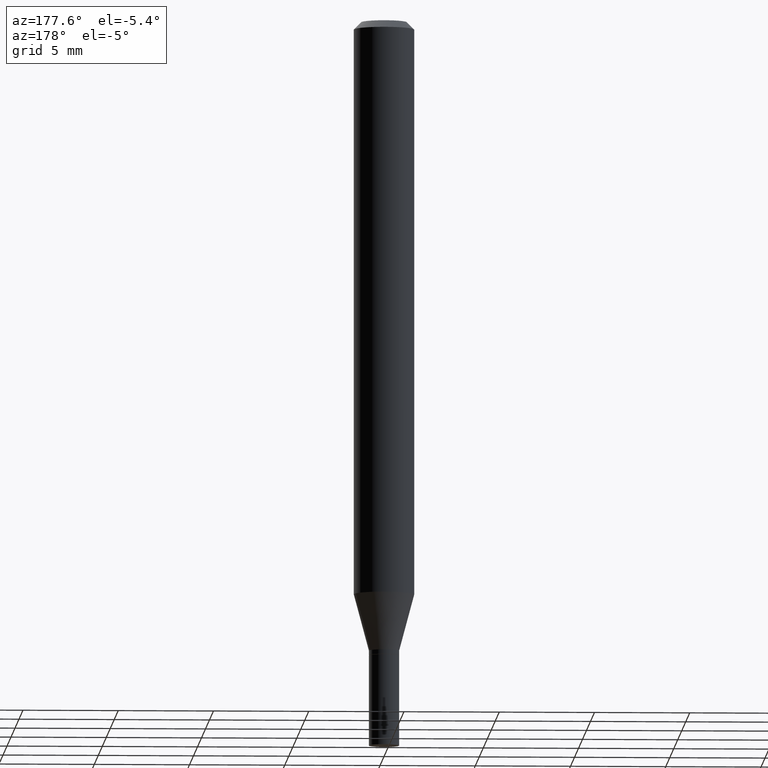
[diagram: clean part render]
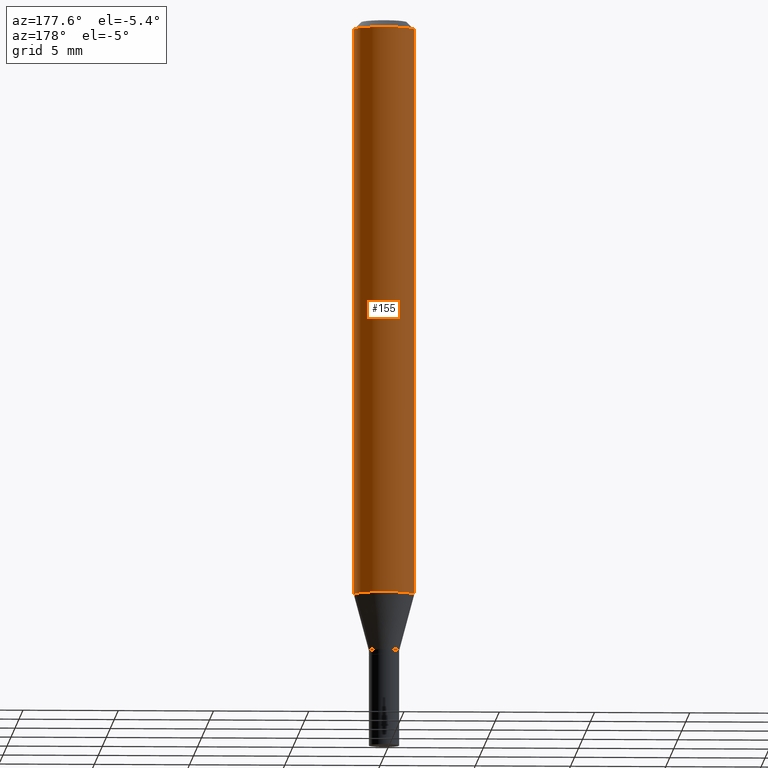
[diagram: same view with one face highlighted and labeled with its STEP entity id]
A machine part, auxiliary view. The second image highlights one B-rep face of the part: STEP entity #155.
In plain terms, the highlighted cylindrical surface (edge-blend (fillet) strip) has radius 1.5875 mm, axis along (-0, 0, 1).
Its self-contained STEP definition (entity closure, byte-faithful):
#4 = AXIS2_PLACEMENT_3D ( 'NONE', #119, #405, #188 ) ;
#18 = CARTESIAN_POINT ( 'NONE',  ( 2.901239172177741338E-29, -4.142200629817580672E-15, -1.186373412263472593 ) ) ;
#29 = DIRECTION ( 'NONE',  ( -2.445468806185136597E-29, 3.491481338843145583E-15, 1.000000000000000000 ) ) ;
#39 = ORIENTED_EDGE ( 'NONE', *, *, #361, .T. ) ;
#59 = CARTESIAN_POINT ( 'NONE',  ( 3.668203209277705088E-31, -5.237222008264718399E-17, -0.01499999999999999944 ) ) ;
#103 = CARTESIAN_POINT ( 'NONE',  ( -0.06250000000000000000, 4.440892098500626162E-16, -3.074334431409316114E-30 ) ) ;
#104 = AXIS2_PLACEMENT_3D ( 'NONE', #59, #29, #309 ) ;
#119 = CARTESIAN_POINT ( 'NONE',  ( 0.000000000000000000, 0.000000000000000000, 0.000000000000000000 ) ) ;
#127 = CARTESIAN_POINT ( 'NONE',  ( 0.06250000000000000000, -4.364351673553916694E-16, 3.047610484872459871E-30 ) ) ;
#131 = CARTESIAN_POINT ( 'NONE',  ( 0.06250000000000000000, -4.578635797172973130E-15, -1.186373412263472593 ) ) ;
#135 = CIRCLE ( 'NONE', #104, 0.06250000000000000000 ) ;
#141 = EDGE_CURVE ( 'NONE', #389, #434, #444, .T. ) ;
#146 = CIRCLE ( 'NONE', #288, 0.06250000000000000000 ) ;
#150 = CYLINDRICAL_SURFACE ( 'NONE', #4, 0.06250000000000000000 ) ;
#155 = ADVANCED_FACE ( 'NONE', ( #230 ), #150, .T. ) ;
#177 = LINE ( 'NONE', #103, #316 ) ;
#188 = DIRECTION ( 'NONE',  ( 1.000000000000000000, -6.982962677686266711E-15, 4.876176775795935793E-29 ) ) ;
#193 = ORIENTED_EDGE ( 'NONE', *, *, #141, .F. ) ;
#206 = EDGE_CURVE ( 'NONE', #436, #430, #177, .T. ) ;
#207 = ORIENTED_EDGE ( 'NONE', *, *, #408, .F. ) ;
#230 = FACE_OUTER_BOUND ( 'NONE', #455, .T. ) ;
#239 = CARTESIAN_POINT ( 'NONE',  ( -0.06250000000000000000, -1.653197215100051457E-15, -0.01499999999999999944 ) ) ;
#242 = DIRECTION ( 'NONE',  ( -2.445468806185136877E-29, 3.491481338843145188E-15, 1.000000000000000000 ) ) ;
#248 = VECTOR ( 'NONE', #307, 39.37007874015748143 ) ;
#255 = ORIENTED_EDGE ( 'NONE', *, *, #206, .T. ) ;
#279 = DIRECTION ( 'NONE',  ( -2.445468806185136597E-29, 3.491481338843145583E-15, 1.000000000000000000 ) ) ;
#288 = AXIS2_PLACEMENT_3D ( 'NONE', #18, #279, #401 ) ;
#307 = DIRECTION ( 'NONE',  ( -2.445468806185136877E-29, 3.491481338843145188E-15, 1.000000000000000000 ) ) ;
#309 = DIRECTION ( 'NONE',  ( 1.000000000000000000, -6.982962677686266711E-15, 0.000000000000000000 ) ) ;
#316 = VECTOR ( 'NONE', #242, 39.37007874015748143 ) ;
#361 = EDGE_CURVE ( 'NONE', #389, #436, #146, .T. ) ;
#389 = VERTEX_POINT ( 'NONE', #131 ) ;
#401 = DIRECTION ( 'NONE',  ( 1.000000000000000000, -6.982962677686262766E-15, 0.000000000000000000 ) ) ;
#405 = DIRECTION ( 'NONE',  ( -2.445468806185136597E-29, 3.491481338843145583E-15, 1.000000000000000000 ) ) ;
#408 = EDGE_CURVE ( 'NONE', #434, #430, #135, .T. ) ;
#430 = VERTEX_POINT ( 'NONE', #239 ) ;
#434 = VERTEX_POINT ( 'NONE', #451 ) ;
#436 = VERTEX_POINT ( 'NONE', #452 ) ;
#444 = LINE ( 'NONE', #127, #248 ) ;
#451 = CARTESIAN_POINT ( 'NONE',  ( 0.06250000000000000000, -4.888073874380388472E-16, -0.01499999999999999944 ) ) ;
#452 = CARTESIAN_POINT ( 'NONE',  ( -0.06250000000000000000, -3.698111419967518845E-15, -1.186373412263472593 ) ) ;
#455 = EDGE_LOOP ( 'NONE', ( #39, #255, #207, #193 ) ) ;